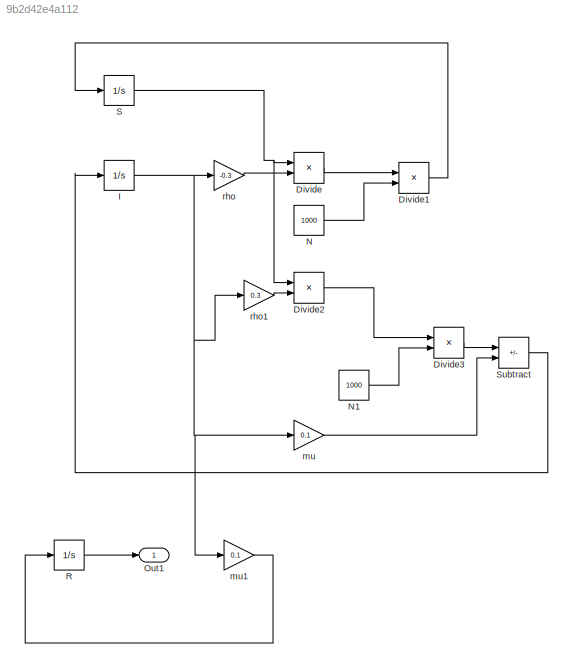
MODEL slx_9b2d42e4a112
KIND model
CONFIG AbsTol = auto
CONFIG EnableMultiTasking = off
CONFIG FixedStep = auto
CONFIG MaxStep = auto
CONFIG MinStep = auto
CONFIG RelTol = 1e-3
CONFIG SampleTimeConstraint = Unconstrained
CONFIG SolverName = VariableStepAuto
CONFIG StartTime = 0.0
CONFIG StopTime = 120
BLOCK [Product] Divide
  Inputs = **
  Ports = [2, 1]
BLOCK [Product] Divide1
  Inputs = */
  Ports = [2, 1]
BLOCK [Product] Divide2
  Inputs = **
  Ports = [2, 1]
BLOCK [Product] Divide3
  Inputs = */
  Ports = [2, 1]
BLOCK [Integrator] I
  InitialCondition = 2
  Ports = [1, 1]
BLOCK [Constant] N
  Value = 1000
BLOCK [Constant] N1
  Value = 1000
BLOCK [Outport] Out1
BLOCK [Integrator] R
  Ports = [1, 1]
BLOCK [Integrator] S
  InitialCondition = 950
  Ports = [1, 1]
BLOCK [Sum] Subtract
  IconShape = rectangular
  Inputs = +-
  Ports = [2, 1]
BLOCK [Gain] mu
  Gain = 0.1
BLOCK [Gain] mu1
  Gain = 0.1
BLOCK [Gain] rho
  Gain = -0.3
BLOCK [Gain] rho1
  Gain = 0.3
LINE Divide1:1 -> S:1
LINE Divide2:1 -> Divide3:1
LINE Divide3:1 -> Subtract:1
LINE Divide:1 -> Divide1:1
NET I:1 -> mu1:1, mu:1, rho1:1, rho:1
LINE N1:1 -> Divide3:2
LINE N:1 -> Divide1:2
LINE R:1 -> Out1:1
NET S:1 -> Divide2:1, Divide:1
LINE Subtract:1 -> I:1
LINE mu1:1 -> R:1
LINE mu:1 -> Subtract:2
LINE rho1:1 -> Divide2:2
LINE rho:1 -> Divide:2
note: NET lines group one-source signal fan-out (src -> all destinations, sorted); 1:1 wires keep LINE
